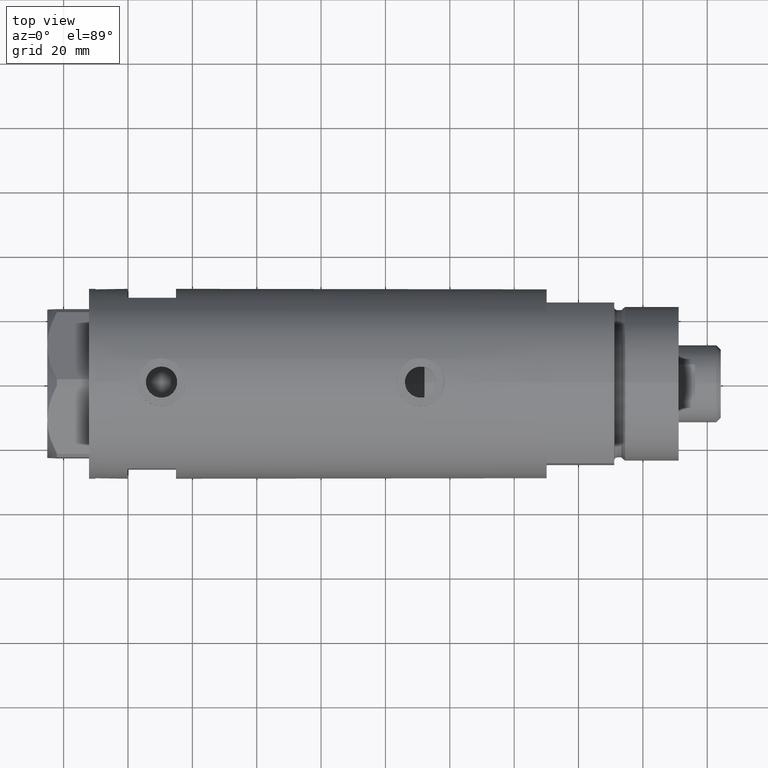
[diagram: clean part render]
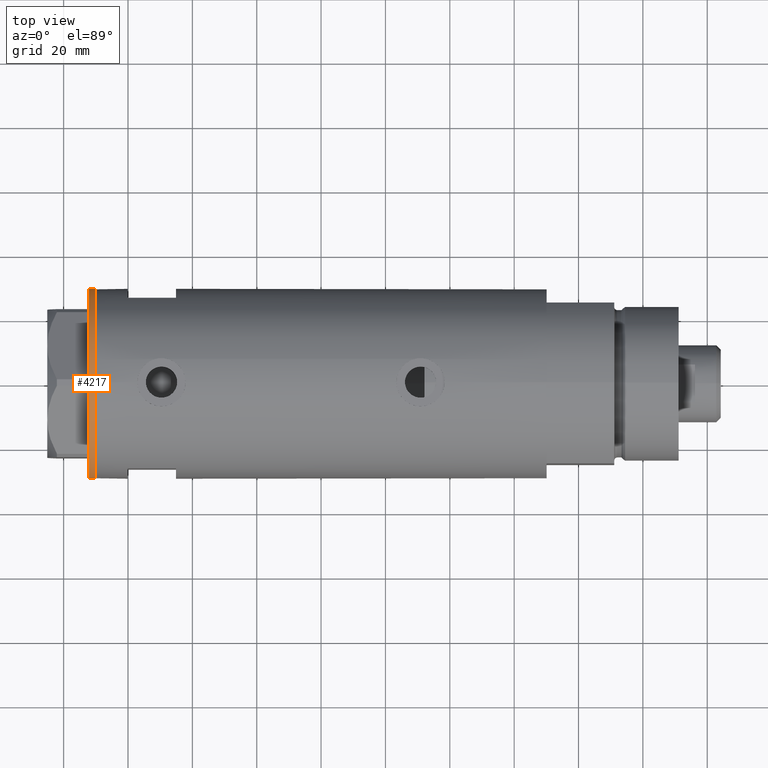
[diagram: same view with one face highlighted and labeled with its STEP entity id]
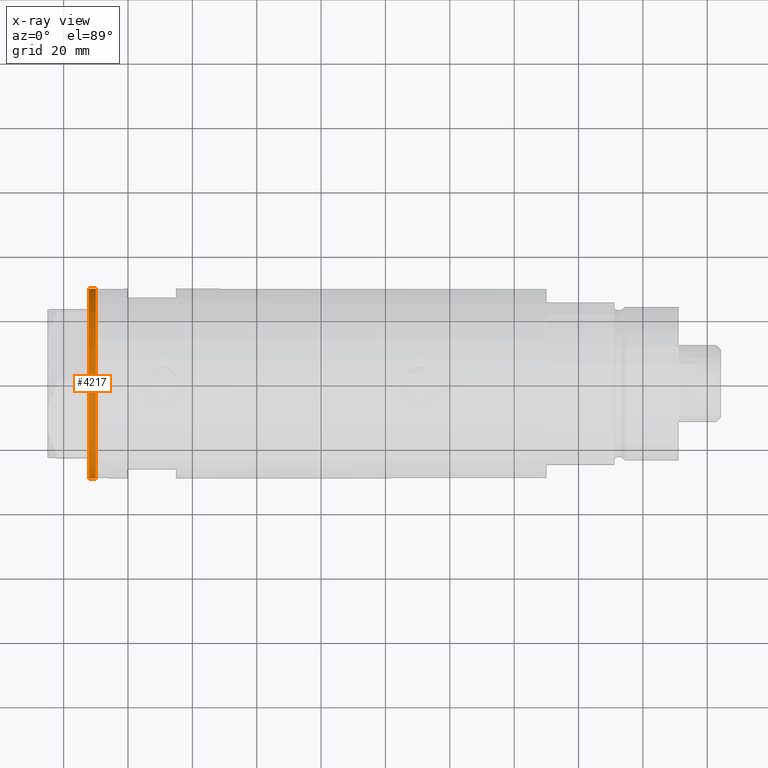
[diagram: x-ray of the same camera — body ghosted, the highlighted face saturated]
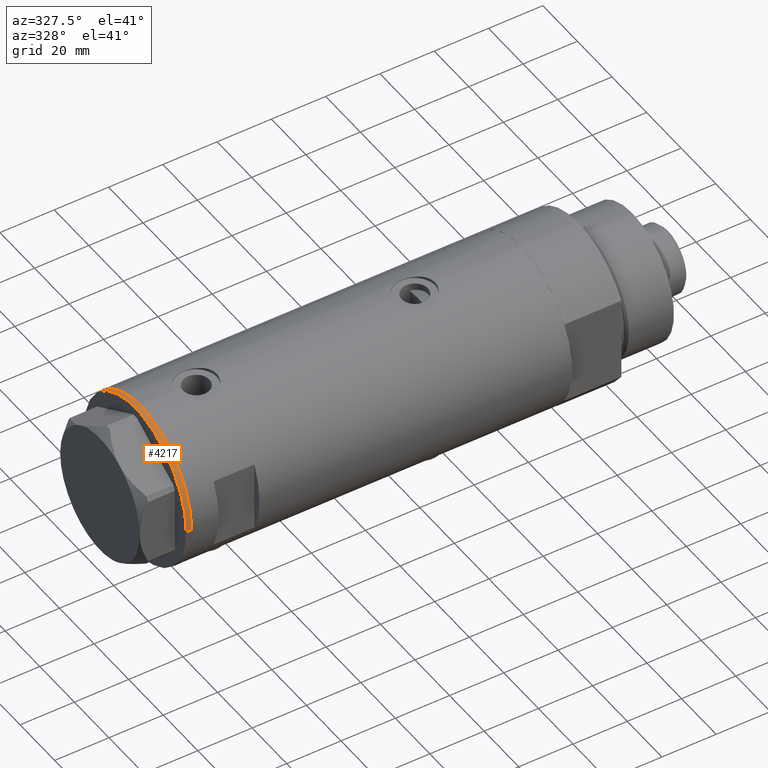
[diagram: same view with one face highlighted and labeled with its STEP entity id]
A machine part, top view. The second image highlights one B-rep face of the part: STEP entity #4217.
The next image is the same camera in x-ray: the body ghosted, the highlighted face saturated — about 0% of this face is hidden behind the body in this view.
A second angle (auxiliary view) of the same face is appended — the face is thin or edge-on in the first view.
In plain terms, the highlighted cylindrical surface (partial cylindrical patch) has radius 29.5 mm, axis along (-1, -0, 0).
Its self-contained STEP definition (entity closure, byte-faithful):
#130 = DIRECTION ( 'NONE',  ( -1.000000000000000000, 0.000000000000000000, 0.000000000000000000 ) ) ;
#223 = CARTESIAN_POINT ( 'NONE',  ( -29.50000000000000355, 3.612708057484692393E-15, -2.000000000000000000 ) ) ;
#618 = CARTESIAN_POINT ( 'NONE',  ( 29.50000000000000355, 0.000000000000000000, 0.000000000000000000 ) ) ;
#797 = ORIENTED_EDGE ( 'NONE', *, *, #1609, .T. ) ;
#967 = DIRECTION ( 'NONE',  ( -0.000000000000000000, -0.000000000000000000, 1.000000000000000000 ) ) ;
#986 = CARTESIAN_POINT ( 'NONE',  ( 29.50000000000000355, 0.000000000000000000, -2.000000000000000000 ) ) ;
#1018 = CYLINDRICAL_SURFACE ( 'NONE', #1879, 29.50000000000000355 ) ;
#1022 = VECTOR ( 'NONE', #1702, 1000.000000000000000 ) ;
#1107 = CIRCLE ( 'NONE', #3436, 29.50000000000000355 ) ;
#1171 = ORIENTED_EDGE ( 'NONE', *, *, #3314, .T. ) ;
#1202 = CARTESIAN_POINT ( 'NONE',  ( 0.000000000000000000, 0.000000000000000000, 0.000000000000000000 ) ) ;
#1269 = LINE ( 'NONE', #223, #1022 ) ;
#1300 = FACE_OUTER_BOUND ( 'NONE', #2825, .T. ) ;
#1370 = LINE ( 'NONE', #3977, #3037 ) ;
#1595 = DIRECTION ( 'NONE',  ( 0.000000000000000000, 0.000000000000000000, -1.000000000000000000 ) ) ;
#1600 = DIRECTION ( 'NONE',  ( 0.000000000000000000, 0.000000000000000000, -1.000000000000000000 ) ) ;
#1609 = EDGE_CURVE ( 'NONE', #3428, #2946, #1370, .T. ) ;
#1672 = DIRECTION ( 'NONE',  ( -1.000000000000000000, 0.000000000000000000, 0.000000000000000000 ) ) ;
#1702 = DIRECTION ( 'NONE',  ( -0.000000000000000000, -0.000000000000000000, 1.000000000000000000 ) ) ;
#1879 = AXIS2_PLACEMENT_3D ( 'NONE', #4678, #967, #2023 ) ;
#2023 = DIRECTION ( 'NONE',  ( 1.000000000000000000, 0.000000000000000000, 0.000000000000000000 ) ) ;
#2170 = VERTEX_POINT ( 'NONE', #4035 ) ;
#2261 = CIRCLE ( 'NONE', #4526, 29.50000000000000355 ) ;
#2370 = CARTESIAN_POINT ( 'NONE',  ( 0.000000000000000000, 0.000000000000000000, -2.000000000000000000 ) ) ;
#2454 = EDGE_CURVE ( 'NONE', #2170, #4713, #1269, .T. ) ;
#2750 = CARTESIAN_POINT ( 'NONE',  ( -29.50000000000000355, 3.612708057484692393E-15, 0.000000000000000000 ) ) ;
#2825 = EDGE_LOOP ( 'NONE', ( #3060, #3676, #797, #1171 ) ) ;
#2946 = VERTEX_POINT ( 'NONE', #618 ) ;
#3037 = VECTOR ( 'NONE', #3612, 1000.000000000000000 ) ;
#3060 = ORIENTED_EDGE ( 'NONE', *, *, #2454, .F. ) ;
#3314 = EDGE_CURVE ( 'NONE', #2946, #4713, #1107, .T. ) ;
#3428 = VERTEX_POINT ( 'NONE', #986 ) ;
#3436 = AXIS2_PLACEMENT_3D ( 'NONE', #1202, #1600, #130 ) ;
#3612 = DIRECTION ( 'NONE',  ( -0.000000000000000000, -0.000000000000000000, 1.000000000000000000 ) ) ;
#3676 = ORIENTED_EDGE ( 'NONE', *, *, #3752, .F. ) ;
#3752 = EDGE_CURVE ( 'NONE', #3428, #2170, #2261, .T. ) ;
#3977 = CARTESIAN_POINT ( 'NONE',  ( 29.50000000000000355, 0.000000000000000000, -2.000000000000000000 ) ) ;
#4035 = CARTESIAN_POINT ( 'NONE',  ( -29.50000000000000355, 3.612708057484692393E-15, -2.000000000000000000 ) ) ;
#4217 = ADVANCED_FACE ( 'NONE', ( #1300 ), #1018, .T. ) ;
#4526 = AXIS2_PLACEMENT_3D ( 'NONE', #2370, #1595, #1672 ) ;
#4678 = CARTESIAN_POINT ( 'NONE',  ( 0.000000000000000000, 0.000000000000000000, -2.000000000000000000 ) ) ;
#4713 = VERTEX_POINT ( 'NONE', #2750 ) ;